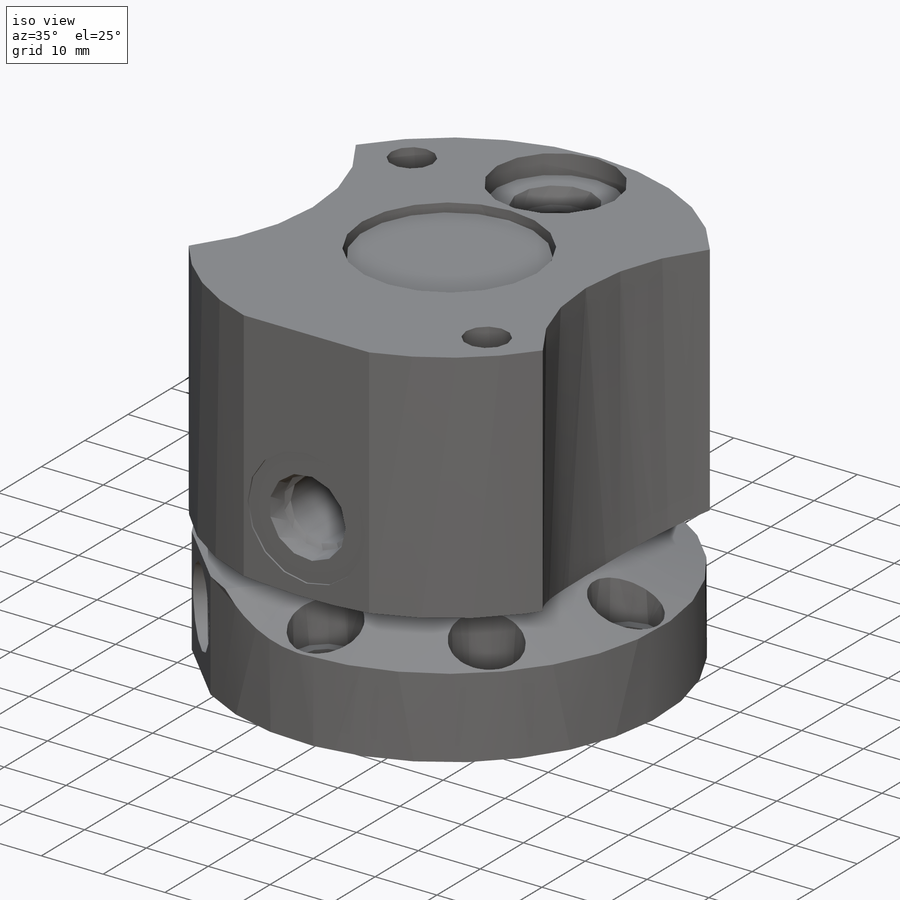
[diagram: iso view]
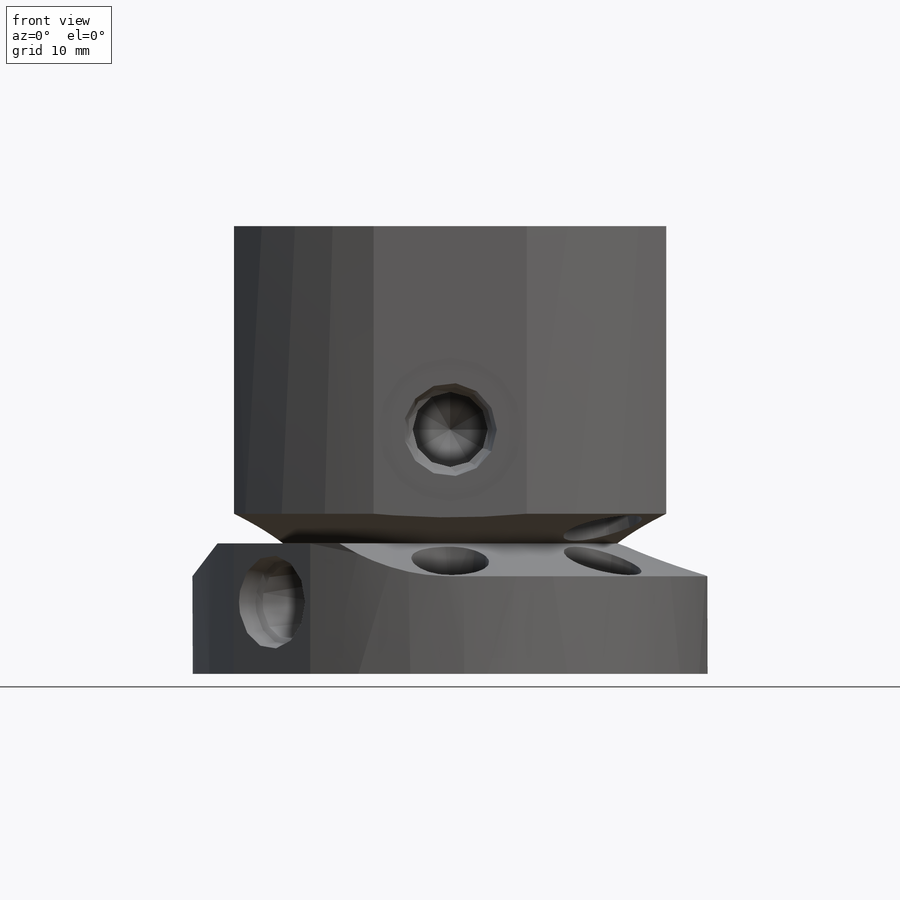
[diagram: front view]
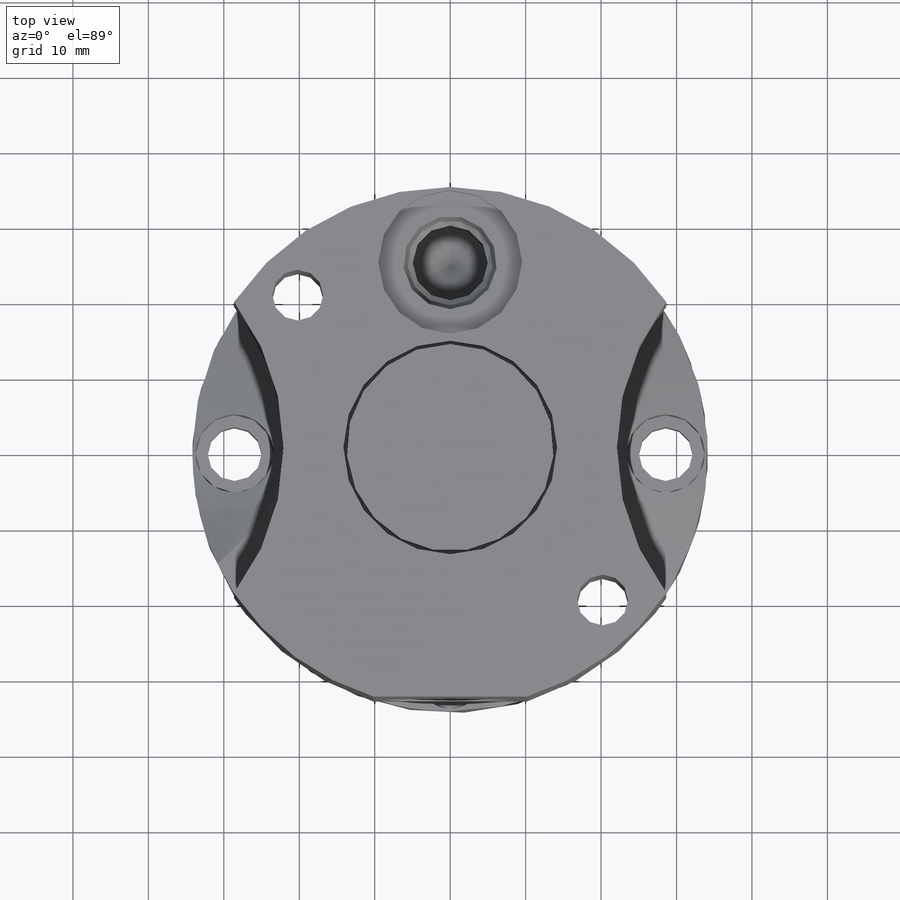
[diagram: top view]
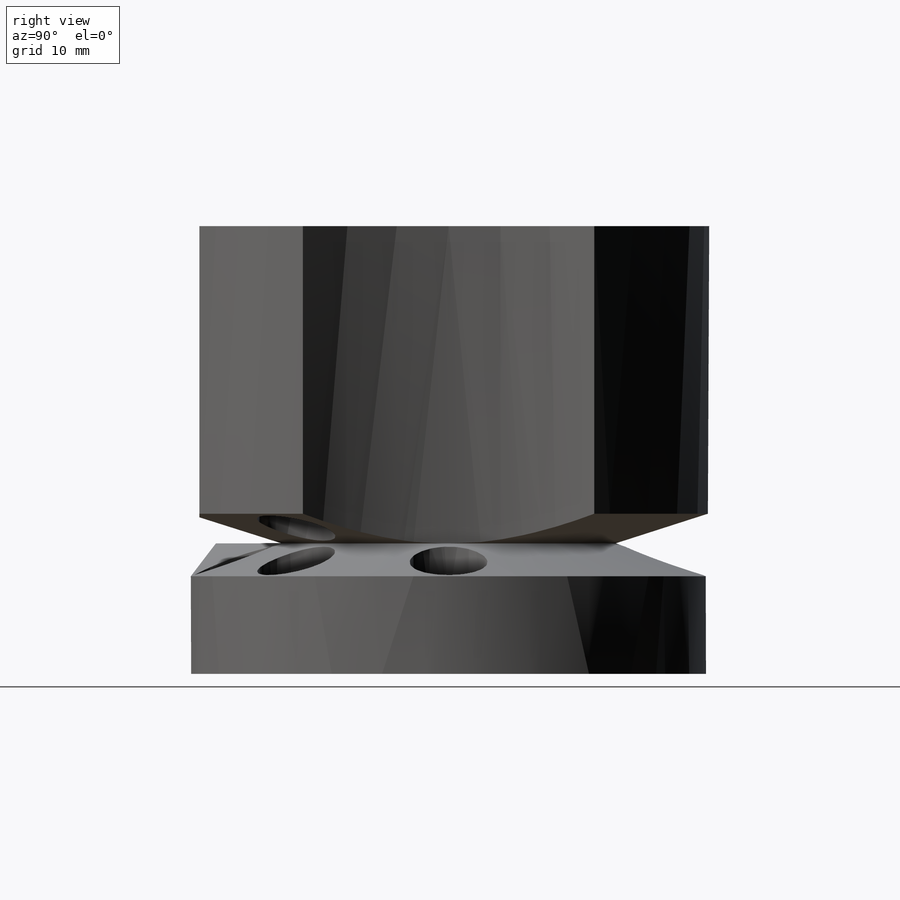
[diagram: right view]
SOLIDWORKS PART (.sldprt)
format: sldprt  version: not decoded by parser v0  size: 1,378,304 bytes
history: native  units: mm
features: sketch x20, cut_revolve x5, cut_extrude x5, plane x4, hole x4, pattern_circular x3, material x1, extrude x1, revolve x1 (+13 scaffold rows collapsed)
feature tree (57):
  scaffold x13  (default folders/planes/origin — collapsed)
  material  "Alloy Steel"
  sketch  "Sketch1"  dims[D1=68.326mm]
  extrude  "Extrude1"  Depth=17.2974mm
  sketch  "Sketch30"  dims[c1.D1=~10.51563mm c2.D1=20.0deg c2.D2=44.45mm]
  cut_revolve  "Cut-Revolve11"  Angle=270deg
  plane  "Plane30"
  sketch  "Sketch31"  dims[D1=38.1mm]
  cut_extrude  "Cut-Extrude18"  [1 undecoded]
  plane  "Plane31"
  sketch  "Sketch32"  dims[D1=38.1mm]
  cut_extrude  "Cut-Extrude19"  [1 undecoded]
  sketch  "Sketch22"  dims[c1.D1=12.192mm c1.D2=9.0932mm c1.D3=2.0701mm c1.D4=6.9088mm c1.D5=2.0701mm c2.D5=12.0deg c2.D6=~0.922331mm c3.D6=45.0deg c3.D7=2.032mm c3.D8=12.7mm]
  sketch  "Sketch20"  dims[c1.D1=204.3811mm c2.D1=45.0deg c2.D2=33.401mm]
  cut_extrude  "Cut-Extrude14"  [1 undecoded]
  cut_revolve  "Cut-Revolve12"  Angle=360deg
  plane  "Plane32"  Offset=9.525mm
  sketch  "S2D0002"  dims[c1.D1=13.97mm c1.D2=2.5527mm c1.D3=12.3698mm c1.D4=9.9568mm c1.D5=~2.609729mm c2.D5=12.0deg c2.D6=~0.938906mm c3.D6=45.0deg]
  cut_revolve  "Cut-Revolve13"  Angle=360deg
  hole  "Hole1"  Diameter=7.1374mm Depth=17.2984mm
  sketch  "Sketch34"  dims[D1=57.15mm]
  sketch  "Sketch33"  dims[Diameter=7.1374mm Depth=17.2984mm C-Bore Diameter=10.3124mm C-Bore Depth=7.366mm]
  pattern_circular  "CirPattern1"  Count=4 Angle=360deg
  hole  "Hole2"  Diameter=10.3124mm Depth=17.2984mm
  sketch  "Sketch36"  dims[c1.D1=28.575mm c2.D1=45.0deg]
  sketch  "Sketch35"  dims[Diameter=10.3124mm Depth=17.2984mm]
  pattern_circular  "CirPattern2"  Count=2 Angle=360deg
  sketch  "Sketch23"  dims[c1.D1=42.0624mm c1.D2=6.35mm c1.D3=3.937mm c2.D3=~162.276763deg c3.D3=3.937mm c3.D4=69.088mm c3.D5=27.432mm c3.D6=28.321mm c3.D7=1.2446mm]
  revolve  "Revolve1"  Angle=360deg
  sketch  "Sketch24"  dims[c1.D1=~14.350438mm c2.D1=45.0deg c2.D2=33.02mm c3.D1=~14.350438mm c4.D1=~5.073883deg c5.D1=~42.420327mm c6.D1=~41.392738deg c7.D1=~42.420327mm c8.D1=45.0deg]
  cut_extrude  "Cut-Extrude15"  [1 undecoded]
  sketch  "Sketch37"  dims[D2=31.75mm D1=53.848mm]
  cut_extrude  "Cut-Extrude20"  [1 undecoded]
  plane  "Plane33"
  sketch  "Sketch27"  dims[c1.D1=9.9568mm c1.D2=4.9784mm c2.D2=59.0deg c2.D3=2.5527mm c2.D4=13.97mm c2.D5=12.3698mm c2.D6=19.05mm c2.D7=2.5527mm c3.D7=12.0deg c3.D8=~0.938906mm c4.D8=45.0deg c4.D9=0.254mm c4.D10=15.0876mm]
  cut_revolve  "Cut-Revolve8"  Angle=360deg
  sketch  "Sketch28"  dims[c1.D1=~5.807968mm c2.D1=59.0deg c2.D2=9.9568mm c2.D3=13.97mm c2.D4=12.3698mm c2.D5=2.5527mm c2.D6=19.05mm c2.D7=3.175mm c2.D8=~2.609729mm c3.D8=12.0deg c3.D9=~0.938906mm c4.D9=45.0deg c4.D10=24.5872mm]
  cut_revolve  "Cut-Revolve9"  Angle=360deg
  hole  "Hole3"  Diameter=6.731mm Depth=42.0624mm
  sketch  "Sketch39"  dims[c1.D2=57.15mm c1.D1=~10.753393mm c2.D1=45.0deg c3.D1=~10.753393mm c4.D1=45.0deg]
  sketch  "Sketch38"  dims[Diameter=6.731mm Depth=42.0624mm C-Bore Diameter=10.414mm C-Bore Depth=7.366mm]
  pattern_circular  "CirPattern3"  Count=2 Angle=360deg
  hole  "#97 (0.0059) Diameter Hole2"  Diameter=5.5372mm Depth=17.2974mm
  sketch  "3DSketch4"  dims[D1=9.525mm]
  sketch  "Sketch42"  dims[hole-wizard template sketch: 46 standard entries collapsed; hole parameters kept: c15.Hole Dia.=5.5372mm c15.Hole Depth=17.2974mm c15.D3=~14.816244mm c15.Drill Angle=180.0deg]
decode coverage: 34 of 39 modeling features carry decoded parameters
note: ~ marks probable driven/reference dimensions
note: 5 parameter values undecoded
summary: no parameter record found for 5 features; Diameter pulled from absorbed wizard sketch
note: suppression state not decoded; provenance and decode notes live in map.json
